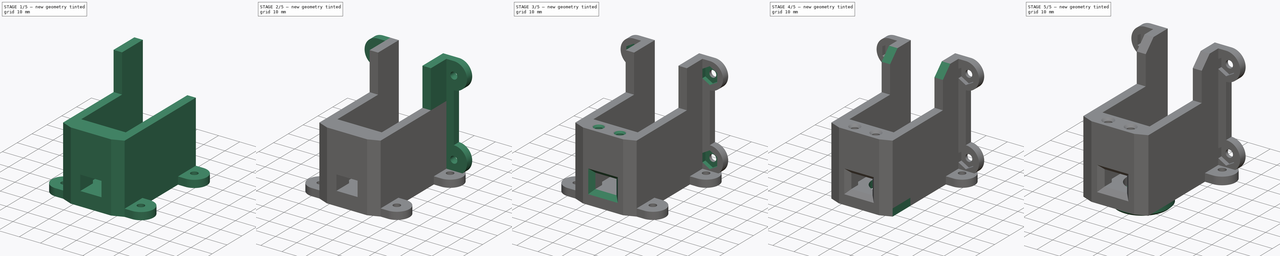
[diagram: build sequence overview — one tinted view per stage of 5, left to right]
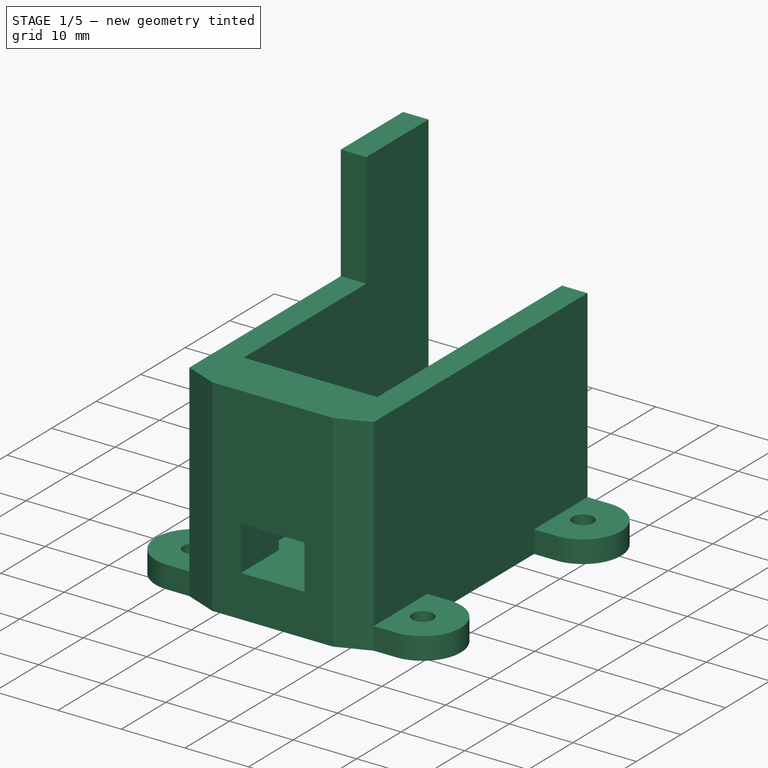
[diagram: stage 1 of 5 — iso view after this stage's code; geometry added in this stage tinted green]
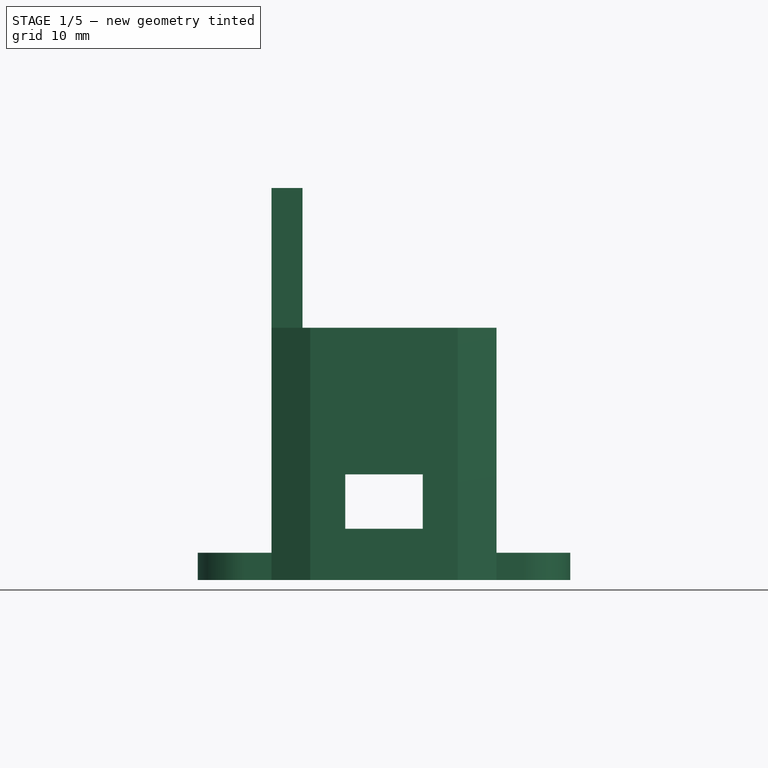
[diagram: stage 1 of 5 — front view after this stage's code; geometry added in this stage tinted green]
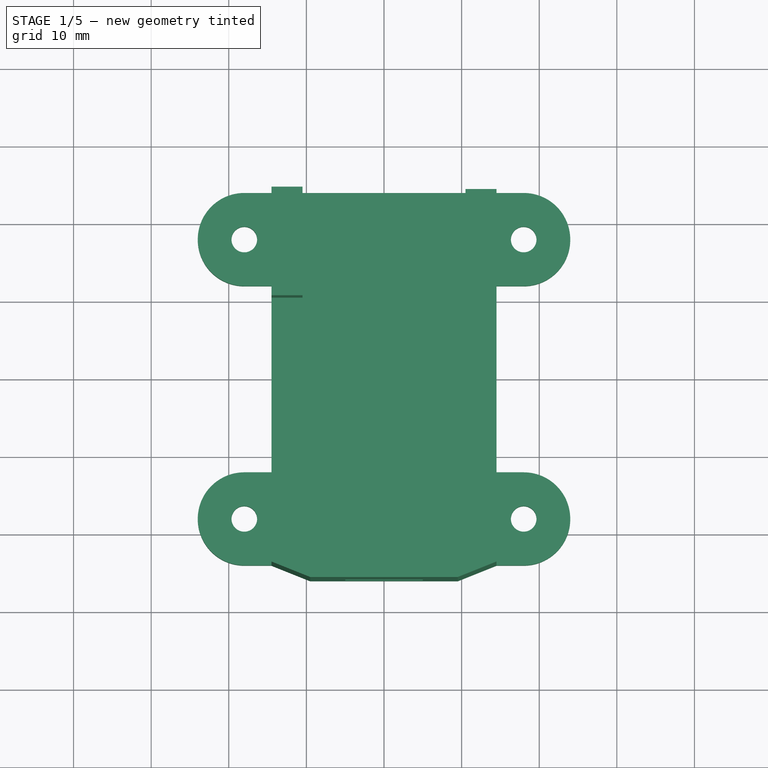
[diagram: stage 1 of 5 — top view after this stage's code; geometry added in this stage tinted green]
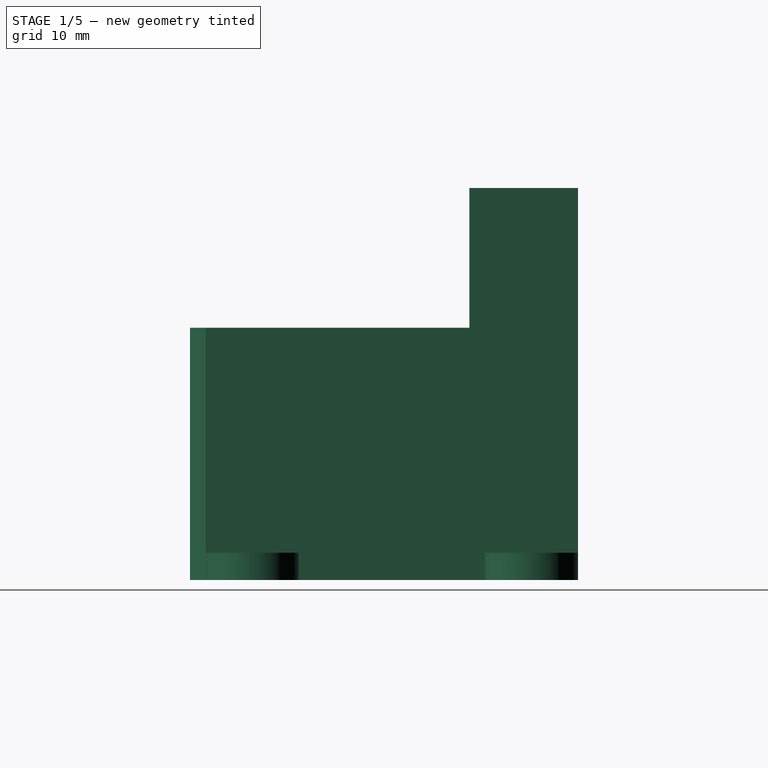
[diagram: stage 1 of 5 — right view after this stage's code; geometry added in this stage tinted green]
FCSTD DOCUMENT  (FreeCAD 0.14R3702 (Git))
Label: SG5010PivotHoleLocked V2
Comment: V2: Screw holes: 1.6 -­> 1.55 mm
License: CC-BY 3.0
LicenseURL: http://creativecommons.org/licenses/by/3.0/
objects: Sketcher::SketchObject×12, PartDesign::Pocket×7, PartDesign::Chamfer×6, PartDesign::Pad×5, PartDesign::Mirrored×3
note: 45 computed .brp shape members not serialized (recipe doc carries the construction recipe); baked Part::Feature solids carry a one-line shape summary decoded from their .brp

FEATURE [Sketcher::SketchObject] Sketch  label="Base"
  sketch-geometry (20):
    g0: LineSegment StartX=14.5 StartY=12 StartZ=0 EndX=18 EndY=12 EndZ=0
    g1: LineSegment StartX=-14.5 StartY=12 StartZ=0 EndX=-18 EndY=12 EndZ=0
    g2: ArcOfCircle CenterX=18 CenterY=18 CenterZ=0 NormalX=0 NormalY=0 NormalZ=1 Radius=6 StartAngle=4.71239 EndAngle=7.85398
    g3: LineSegment StartX=18 StartY=24 StartZ=0 EndX=-18 EndY=24 EndZ=0
    g4: ArcOfCircle CenterX=-18 CenterY=18 CenterZ=0 NormalX=0 NormalY=0 NormalZ=1 Radius=6 StartAngle=1.5708 EndAngle=4.71239
    g5: LineSegment StartX=14.5 StartY=12 StartZ=0 EndX=14.5 EndY=-12 EndZ=0
    g6: LineSegment StartX=-14.5 StartY=12 StartZ=0 EndX=-14.5 EndY=-12 EndZ=0
    g7: LineSegment StartX=-14.5 StartY=-12 StartZ=0 EndX=-18 EndY=-12 EndZ=0
    g8: LineSegment StartX=14.5 StartY=-12 StartZ=0 EndX=18 EndY=-12 EndZ=0
    g9: LineSegment StartX=-14.5 StartY=-24 StartZ=0 EndX=-9.5 EndY=-26 EndZ=0
    g10: LineSegment StartX=-9.5 StartY=-26 StartZ=0 EndX=9.5 EndY=-26 EndZ=0
    g11: LineSegment StartX=9.5 StartY=-26 StartZ=0 EndX=14.5 EndY=-24 EndZ=0
    g12: ArcOfCircle CenterX=-18 CenterY=-18 CenterZ=0 NormalX=0 NormalY=0 NormalZ=1 Radius=6 StartAngle=1.5708 EndAngle=4.71239
    g13: ArcOfCircle CenterX=18 CenterY=-18 CenterZ=0 NormalX=0 NormalY=0 NormalZ=1 Radius=6 StartAngle=4.71239 EndAngle=7.85398
    g14: LineSegment StartX=18 StartY=-24 StartZ=0 EndX=14.5 EndY=-24 EndZ=0
    g15: LineSegment StartX=-18 StartY=-24 StartZ=0 EndX=-14.5 EndY=-24 EndZ=0
    g16: Circle CenterX=18 CenterY=18 CenterZ=0 NormalX=0 NormalY=0 NormalZ=1 Radius=1.65
    g17: Circle CenterX=-18 CenterY=18 CenterZ=0 NormalX=0 NormalY=0 NormalZ=1 Radius=1.65
    g18: Circle CenterX=18 CenterY=-18 CenterZ=0 NormalX=0 NormalY=0 NormalZ=1 Radius=1.65
    g19: Circle CenterX=-18 CenterY=-18 CenterZ=0 NormalX=0 NormalY=0 NormalZ=1 Radius=1.65
  constraints (53):
    c: Symmetric(g0,g1,g-2)
    c: Coincident(g2,g0)
    c: Horizontal(g0)
    c: Symmetric(g0,g1,g-2)
    c: Coincident(g3,g2)
    c: Symmetric(g3,g2,g-2)
    c: Coincident(g4,g3)
    c: Coincident(g4,g1)
    c: Symmetric(g4,g2,g-2)
    c: DistanceX(g4,g3) = 0
    c: DistanceX(g2,g0) = 0
    c: Coincident(g5,g0)
    c: Vertical(g5)
    c: Coincident(g6,g1)
    c: Vertical(g6)
    c: Symmetric(g6,g5,g-2)
    c: Coincident(g7,g6)
    c: Horizontal(g7)
    c: Coincident(g8,g5)
    c: Symmetric(g7,g1,g-1)
    c: Symmetric(g7,g8,g-2)
    c: Symmetric(g12,g13,g-2)
    c: Symmetric(g9,g11,g-2)
    c: Coincident(g9,g10)
    c: Horizontal(g10)
    c: Coincident(g10,g11)
    c: Symmetric(g9,g10,g-2)
    c: Coincident(g13,g8)
    c: Symmetric(g12,g13,g-2)
    c: Coincident(g12,g7)
    c: Coincident(g14,g11)
    c: Coincident(g15,g12)
    c: Coincident(g15,g9)
    c: Horizontal(g15)
    c: Coincident(g14,g13)
    c: DistanceX(g12,g7) = 0
    c: DistanceX(g13,g13) = 0
    c: Equal(g12,g4)
    c: DistanceX(g6,g9) = 0
    c: Distance(g6,g5) = 29
    c: DistanceY(g2,g10) = -50
    c: DistanceX(g9,g9) = 5
    c: Coincident(g16,g2)
    c: Coincident(g17,g4)
    c: Coincident(g18,g13)
    c: Coincident(g19,g12)
    c: Equal(g17,g16)
    c: Equal(g16,g18)
    c: Equal(g18,g19)
    c: Radius(g16) = 1.65
    c: DistanceX(g4,g2) = 36
    c: Distance(g2,g13) = 36
    c: Radius(g4) = 6
FEATURE [PartDesign::Pad] Pad  label="Pad - Base"
  Length = 3.5
  Length2 = 100
  Sketch = -> Sketch
  Type = 0
FEATURE [Sketcher::SketchObject] Sketch001  label="Walls profile"
  ExternalGeometry = -> [Pad]
  Placement = pos=(0,0,3.5) rot=(0,0,1;0rad)
  Support = -> Pad [Face22]
  sketch-geometry (10):
    g0: LineSegment StartX=-14.5 StartY=24 StartZ=0 EndX=-14.5 EndY=-24 EndZ=0
    g1: LineSegment StartX=-14.5 StartY=-24 StartZ=0 EndX=-9.5 EndY=-26 EndZ=0
    g2: LineSegment StartX=-9.5 StartY=-26 StartZ=0 EndX=9.5 EndY=-26 EndZ=0
    g3: LineSegment StartX=9.5 StartY=-26 StartZ=0 EndX=14.5 EndY=-24 EndZ=0
    g4: LineSegment StartX=14.5 StartY=-24 StartZ=0 EndX=14.5 EndY=24 EndZ=0
    g5: LineSegment StartX=14.5 StartY=24 StartZ=0 EndX=10.5 EndY=24 EndZ=0
    g6: LineSegment StartX=10.5 StartY=24 StartZ=0 EndX=10.5 EndY=-17.5 EndZ=0
    g7: LineSegment StartX=10.5 StartY=-17.5 StartZ=0 EndX=-10.5 EndY=-17.5 EndZ=0
    g8: LineSegment StartX=-10.5 StartY=-17.5 StartZ=0 EndX=-10.5 EndY=24 EndZ=0
    g9: LineSegment StartX=-10.5 StartY=24 StartZ=0 EndX=-14.5 EndY=24 EndZ=0
  constraints (27):
    c: PointOnObject(g0,g-5)
    c: Coincident(g0,g-7)
    c: Vertical(g0)
    c: Coincident(g0,g1)
    c: Coincident(g1,g2)
    c: Coincident(g2,g-8)
    c: Horizontal(g2)
    c: Coincident(g2,g3)
    c: Coincident(g3,g-8)
    c: Coincident(g3,g4)
    c: PointOnObject(g4,g-5)
    c: Vertical(g4)
    c: Coincident(g4,g5)
    c: Horizontal(g5)
    c: Coincident(g5,g6)
    c: Vertical(g6)
    c: Coincident(g6,g7)
    c: Horizontal(g7)
    c: Coincident(g7,g8)
    c: PointOnObject(g8,g-5)
    c: Vertical(g8)
    c: Coincident(g8,g9)
    c: Coincident(g9,g0)
    c: Symmetric(g7,g6,g-2)
    c: Coincident(g1,g-7)
    c: Distance(g7,g6) = 21
    c: Distance(g6) = 41.5
FEATURE [PartDesign::Pad] Pad001  label="Pad - Walls"
  Length = 29
  Length2 = 100
  Sketch = -> Sketch001
  Type = 0
FEATURE [Sketcher::SketchObject] Sketch002  label="Cable hole"
  ExternalGeometry = -> [Pad001]
  Placement = pos=(0,-26,0) rot=(1,0,0;1.5708rad)
  Support = -> Pad001 [Face34]
  sketch-geometry (7):
    g0: LineSegment StartX=-5 StartY=13.6 StartZ=0 EndX=5 EndY=13.6 EndZ=0
    g1: LineSegment StartX=5 StartY=13.6 StartZ=0 EndX=5 EndY=6.6 EndZ=0
    g2: LineSegment StartX=5 StartY=6.6 StartZ=0 EndX=-5 EndY=6.6 EndZ=0
    g3: LineSegment StartX=-5 StartY=6.6 StartZ=0 EndX=-5 EndY=13.6 EndZ=0
    g4: LineSegment [constr] StartX=-5 StartY=13.6 StartZ=0 EndX=5 EndY=6.6 EndZ=0
    g5: LineSegment [constr] StartX=5 StartY=13.6 StartZ=0 EndX=-5 EndY=6.6 EndZ=0
    g6: GeomPoint [constr] X=0 Y=10.1 Z=0
  constraints (18):
    c: Coincident(g0,g1)
    c: Coincident(g1,g2)
    c: Coincident(g2,g3)
    c: Coincident(g3,g0)
    c: Horizontal(g0)
    c: Horizontal(g2)
    c: Vertical(g1)
    c: Vertical(g3)
    c: Symmetric(g0,g0,g-2)
    c: Coincident(g4,g0)
    c: Coincident(g4,g1)
    c: Coincident(g5,g0)
    c: Coincident(g5,g2)
    c: PointOnObject(g6,g5)
    c: PointOnObject(g6,g4)
    c: DistanceY(g6,g-3) = 22.4
    c: Distance(g3) = 7
    c: Distance(g0) = 10
FEATURE [PartDesign::Pocket] Pocket  label="Pocket - Cable hole"
  Length = 5
  Sketch = -> Sketch002
  Type = 1
FEATURE [Sketcher::SketchObject] Sketch003  label="Back tower"
  ExternalGeometry = -> [Pocket]
  Placement = pos=(0,0,32.5) rot=(0,0,1;0rad)
  Support = -> Pocket [Face26]
  sketch-geometry (4):
    g0: LineSegment StartX=-14.5 StartY=24 StartZ=0 EndX=-10.5 EndY=24 EndZ=0
    g1: LineSegment StartX=-10.5 StartY=24 StartZ=0 EndX=-10.5 EndY=10 EndZ=0
    g2: LineSegment StartX=-10.5 StartY=10 StartZ=0 EndX=-14.5 EndY=10 EndZ=0
    g3: LineSegment StartX=-14.5 StartY=10 StartZ=0 EndX=-14.5 EndY=24 EndZ=0
  constraints (11):
    c: Coincident(g0,g1)
    c: Coincident(g1,g2)
    c: Coincident(g2,g3)
    c: Coincident(g3,g0)
    c: Horizontal(g0)
    c: Horizontal(g2)
    c: Vertical(g1)
    c: Vertical(g3)
    c: Distance(g3) = 14
    c: Coincident(g0,g-3)
    c: Coincident(g0,g-3)
FEATURE [PartDesign::Pad] Pad002  label="Pad - Back tower"
  Length = 18
  Length2 = 100
  Sketch = -> Sketch003
  Type = 0
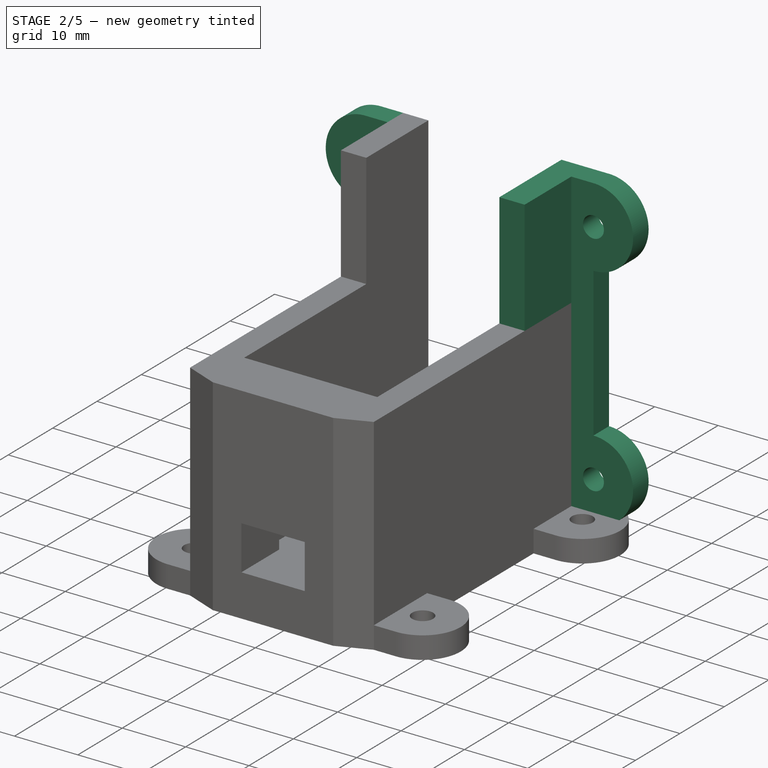
[diagram: stage 2 of 5 — iso view after this stage's code; geometry added in this stage tinted green]
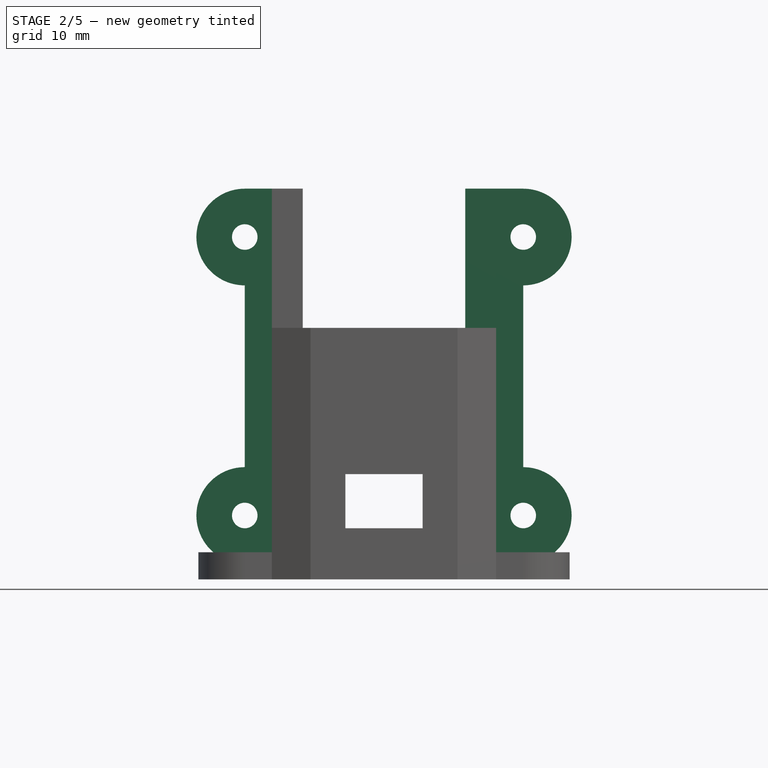
[diagram: stage 2 of 5 — front view after this stage's code; geometry added in this stage tinted green]
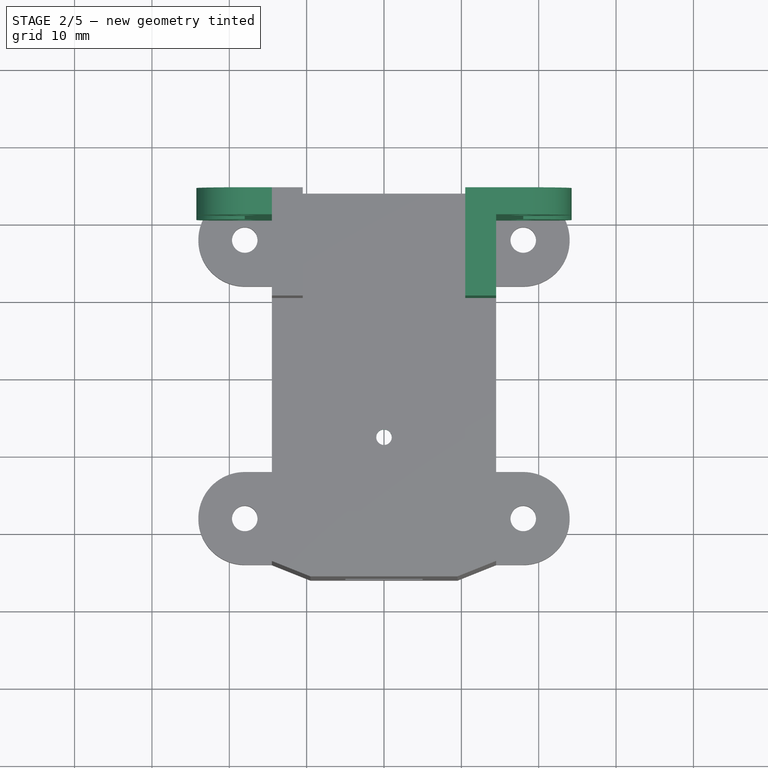
[diagram: stage 2 of 5 — top view after this stage's code; geometry added in this stage tinted green]
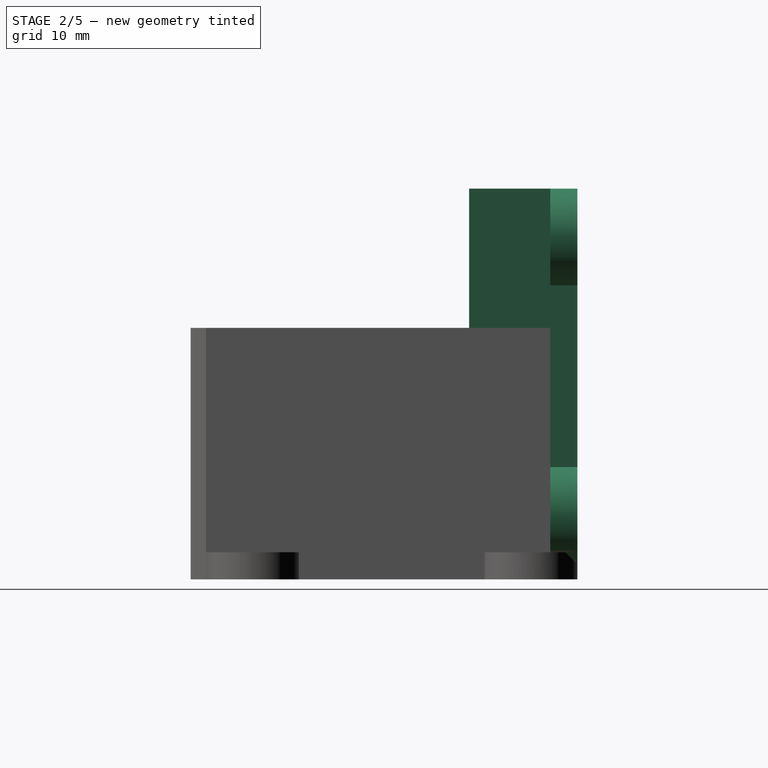
[diagram: stage 2 of 5 — right view after this stage's code; geometry added in this stage tinted green]
FEATURE [PartDesign::Mirrored] Mirrored
  MirrorPlane = -> Sketch003 [V_Axis]
  Originals = -> [Pad002]
FEATURE [Sketcher::SketchObject] Sketch004  label="Back ears"
  ExternalGeometry = -> [Mirrored]
  Placement = pos=(0,24,0) rot=(0,0.707107,0.707107;3.14159rad)
  Support = -> Mirrored [Face31]
  sketch-geometry (16):
    g0: ArcOfCircle CenterX=18 CenterY=44.25 CenterZ=0 NormalX=0 NormalY=0 NormalZ=1 Radius=6.25 StartAngle=4.71239 EndAngle=7.85398
    g1: ArcOfCircle CenterX=18 CenterY=8.25 CenterZ=0 NormalX=0 NormalY=0 NormalZ=1 Radius=6.25 StartAngle=4.71239 EndAngle=7.85398
    g2: ArcOfCircle CenterX=-18 CenterY=44.25 CenterZ=0 NormalX=0 NormalY=0 NormalZ=1 Radius=6.25 StartAngle=1.5708 EndAngle=4.71239
    g3: ArcOfCircle CenterX=-18 CenterY=8.25 CenterZ=0 NormalX=0 NormalY=0 NormalZ=1 Radius=6.25 StartAngle=1.5708 EndAngle=4.71239
    g4: LineSegment StartX=18 StartY=50.5 StartZ=0 EndX=10.5 EndY=50.5 EndZ=0
    g5: LineSegment StartX=10.5 StartY=50.5 StartZ=0 EndX=10.5 EndY=2 EndZ=0
    g6: LineSegment StartX=10.5 StartY=2 StartZ=0 EndX=18 EndY=2 EndZ=0
    g7: LineSegment StartX=18 StartY=38 StartZ=0 EndX=18 EndY=14.5 EndZ=0
    g8: LineSegment StartX=-18 StartY=50.5 StartZ=0 EndX=-10.5 EndY=50.5 EndZ=0
    g9: LineSegment StartX=-10.5 StartY=50.5 StartZ=0 EndX=-10.5 EndY=2 EndZ=0
    g10: LineSegment StartX=-10.5 StartY=2 StartZ=0 EndX=-18 EndY=2 EndZ=0
    g11: LineSegment StartX=-18 StartY=38 StartZ=0 EndX=-18 EndY=14.5 EndZ=0
    g12: Circle CenterX=-18 CenterY=44.25 CenterZ=0 NormalX=0 NormalY=0 NormalZ=1 Radius=1.65
    g13: Circle CenterX=18 CenterY=44.25 CenterZ=0 NormalX=0 NormalY=0 NormalZ=1 Radius=1.65
    g14: Circle CenterX=18 CenterY=8.25 CenterZ=0 NormalX=0 NormalY=0 NormalZ=1 Radius=1.65
    g15: Circle CenterX=-18 CenterY=8.25 CenterZ=0 NormalX=0 NormalY=0 NormalZ=1 Radius=1.65
  constraints (42):
    c: Symmetric(g2,g0,g-2)
    c: Symmetric(g3,g1,g-2)
    c: Equal(g0,g1)
    c: Symmetric(g0,g2,g-2)
    c: Symmetric(g2,g0,g-2)
    c: Symmetric(g3,g1,g-2)
    c: Symmetric(g3,g1,g-2)
    c: DistanceX(g2,g2) = 0
    c: DistanceX(g0,g0) = 0
    c: DistanceX(g3,g3) = 0
    c: DistanceX(g1,g1) = 0
    c: DistanceX(g0,g1) = 0
    c: Distance(g0,g2) = 36
    c: Distance(g0,g1) = 36
    c: Radius(g1) = 6.25
    c: DistanceY(g-3,g0) = 0
    c: Tangent(g0,g4)
    c: Coincident(g4,g5)
    c: Vertical(g5)
    c: Coincident(g5,g6)
    c: Coincident(g6,g1)
    c: Horizontal(g6)
    c: Coincident(g7,g0)
    c: Coincident(g7,g1)
    c: Coincident(g4,g-3)
    c: Vertical(g9)
    c: Coincident(g9,g10)
    c: Coincident(g10,g3)
    c: Horizontal(g10)
    c: Coincident(g8,g-5)
    c: Coincident(g9,g8)
    c: Coincident(g2,g8)
    c: Coincident(g11,g2)
    c: Coincident(g11,g3)
    c: Coincident(g12,g2)
    c: Coincident(g13,g0)
    c: Coincident(g14,g1)
    c: Coincident(g15,g3)
    c: Equal(g12,g13)
    c: Equal(g13,g14)
    c: Equal(g14,g15)
    c: Radius(g13) = 1.65
FEATURE [PartDesign::Pad] Pad003  label="Pad - Back ears"
  Length = 3.5
  Length2 = 100
  Reversed = true
  Sketch = -> Sketch004
  Type = 0
FEATURE [Sketcher::SketchObject] Sketch005  label="Pivot hole"
  ExternalGeometry = -> [Pad003]
  Placement = pos=(0,0,0) rot=(1,0,0;3.14159rad)
  Support = -> Pad003 [Face4]
  sketch-geometry (2):
    g0: GeomPoint [constr] X=0 Y=7.5 Z=0
    g1: Circle CenterX=0 CenterY=7.5 CenterZ=0 NormalX=0 NormalY=0 NormalZ=1 Radius=1
  constraints (4):
    c: PointOnObject(g0,g-2)
    c: Distance(g0,g-4) = 10
    c: Coincident(g1,g0)
    c: Radius(g1) = 1
FEATURE [PartDesign::Pocket] Pocket001
  Length = 5
  Sketch = -> Sketch005
  Type = 0
FEATURE [PartDesign::Chamfer] Chamfer
  Base = -> Pocket001 [Edge29]
  Size = 2
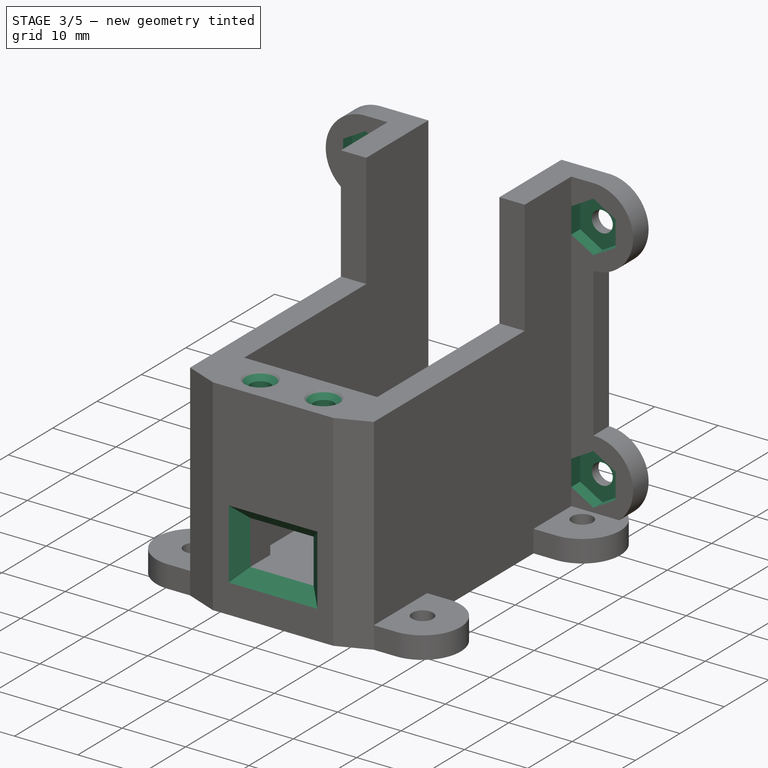
[diagram: stage 3 of 5 — iso view after this stage's code; geometry added in this stage tinted green]
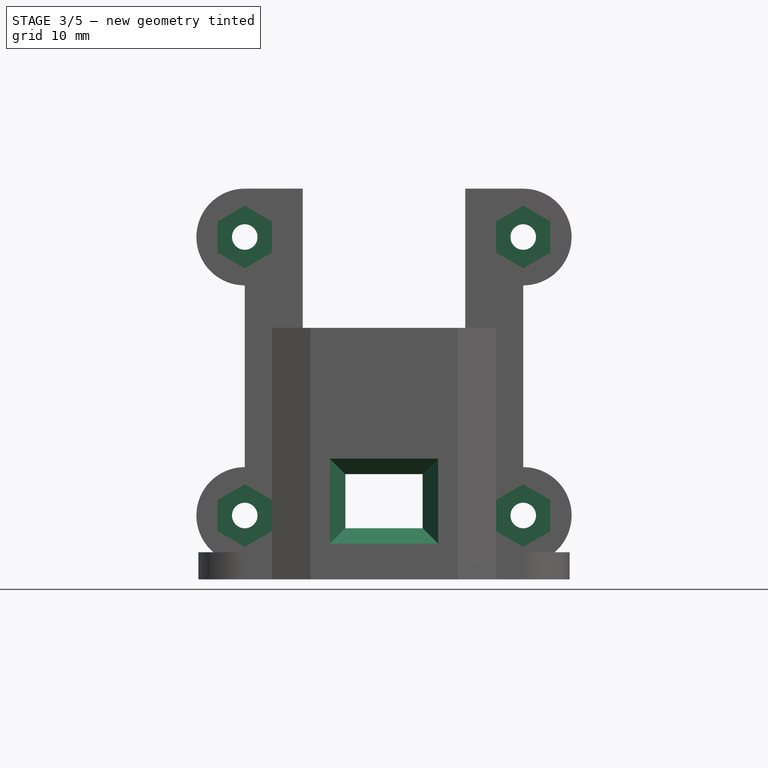
[diagram: stage 3 of 5 — front view after this stage's code; geometry added in this stage tinted green]
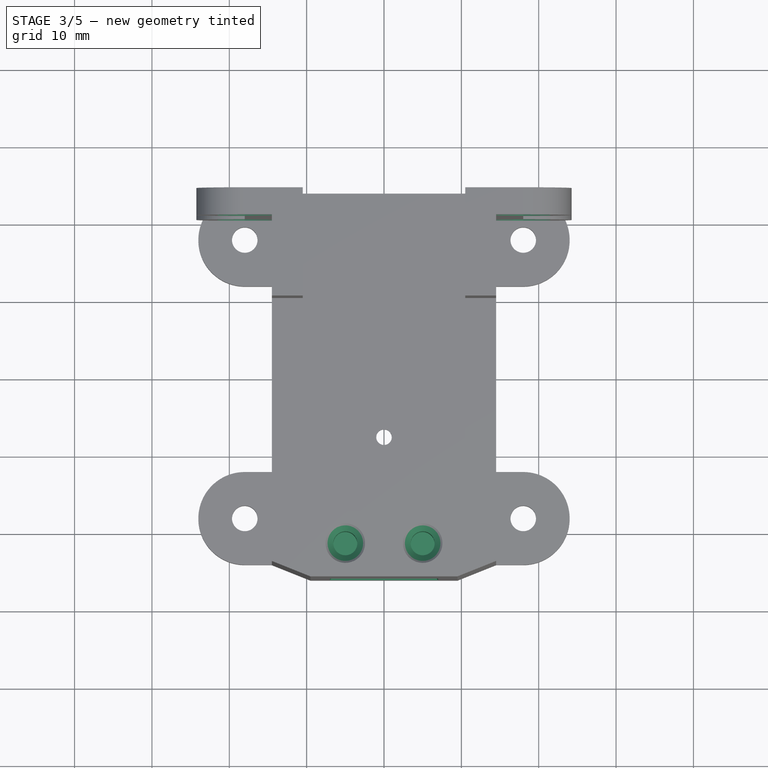
[diagram: stage 3 of 5 — top view after this stage's code; geometry added in this stage tinted green]
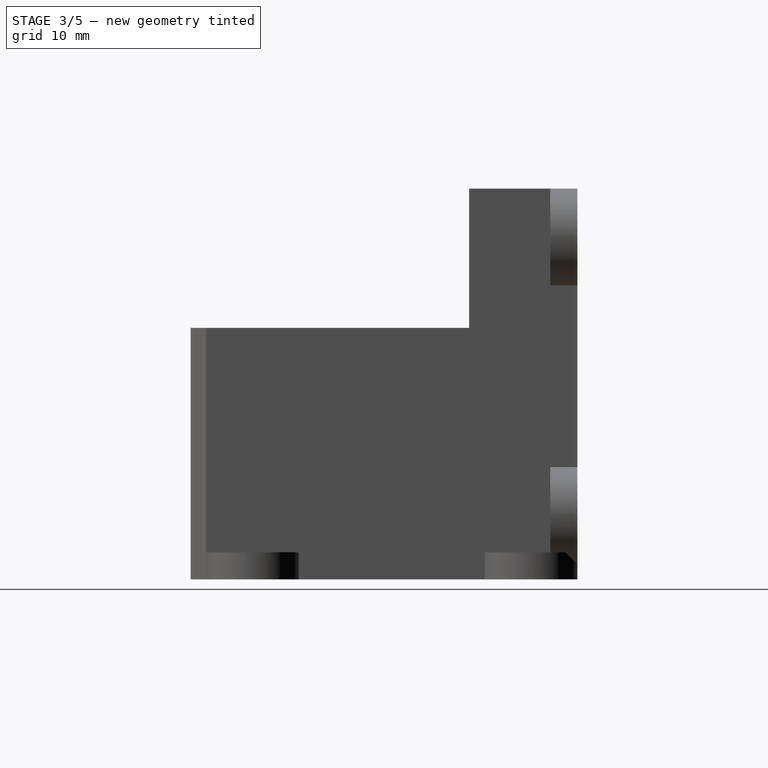
[diagram: stage 3 of 5 — right view after this stage's code; geometry added in this stage tinted green]
FEATURE [Sketcher::SketchObject] Sketch006  label="Back ears hexagons"
  ExternalGeometry = -> [Chamfer]
  Placement = pos=(0,20.5,0) rot=(1,0,0;1.5708rad)
  Support = -> Chamfer [Face51]
  sketch-geometry (18):
    g0: LineSegment StartX=-21.5 StartY=42.2293 StartZ=0 EndX=-18 EndY=40.2085 EndZ=0
    g1: LineSegment StartX=-18 StartY=40.2085 StartZ=0 EndX=-14.5 EndY=42.2293 EndZ=0
    g2: LineSegment StartX=-14.5 StartY=42.2293 StartZ=0 EndX=-14.5 EndY=46.2707 EndZ=0
    g3: LineSegment StartX=-14.5 StartY=46.2707 StartZ=0 EndX=-18 EndY=48.2915 EndZ=0
    g4: LineSegment StartX=-18 StartY=48.2915 StartZ=0 EndX=-21.5 EndY=46.2707 EndZ=0
    g5: LineSegment StartX=-21.5 StartY=46.2707 StartZ=0 EndX=-21.5 EndY=42.2293 EndZ=0
    g6: LineSegment [constr] StartX=-21.5 StartY=46.2707 StartZ=0 EndX=-14.5 EndY=42.2293 EndZ=0
    g7: LineSegment [constr] StartX=-14.5 StartY=46.2707 StartZ=0 EndX=-21.5 EndY=42.2293 EndZ=0
    g8: GeomPoint [constr] X=-18 Y=44.25 Z=0
    g9: LineSegment StartX=-18 StartY=12.2915 StartZ=0 EndX=-21.5 EndY=10.2707 EndZ=0
    g10: LineSegment StartX=-21.5 StartY=10.2707 StartZ=0 EndX=-21.5 EndY=6.22927 EndZ=0
    g11: LineSegment StartX=-21.5 StartY=6.22927 StartZ=0 EndX=-18 EndY=4.20855 EndZ=0
    g12: LineSegment StartX=-18 StartY=4.20855 StartZ=0 EndX=-14.5 EndY=6.22927 EndZ=0
    g13: LineSegment StartX=-14.5 StartY=6.22927 StartZ=0 EndX=-14.5 EndY=10.2707 EndZ=0
    g14: LineSegment StartX=-14.5 StartY=10.2707 StartZ=0 EndX=-18 EndY=12.2915 EndZ=0
    g15: LineSegment [constr] StartX=-21.5 StartY=10.2707 StartZ=0 EndX=-14.5 EndY=6.22927 EndZ=0
    g16: LineSegment [constr] StartX=-14.5 StartY=10.2707 StartZ=0 EndX=-21.5 EndY=6.22927 EndZ=0
    g17: GeomPoint [constr] X=-18 Y=8.25 Z=0
  constraints (46):
    c: Coincident(g0,g1)
    c: Coincident(g1,g2)
    c: Vertical(g2)
    c: Coincident(g2,g3)
    c: Coincident(g3,g4)
    c: Coincident(g4,g5)
    c: Coincident(g5,g0)
    c: Vertical(g5)
    c: Equal(g5,g4)
    c: Equal(g4,g3)
    c: Equal(g3,g2)
    c: Equal(g2,g1)
    c: Equal(g1,g0)
    c: Angle(g5,g4) = 2.0944
    c: Angle(g4,g3) = 2.0944
    c: Coincident(g6,g4)
    c: Coincident(g6,g1)
    c: Coincident(g7,g2)
    c: Coincident(g7,g0)
    c: PointOnObject(g8,g7)
    c: PointOnObject(g8,g6)
    c: Distance(g4,g2) = 7
    c: Coincident(g8,g-3)
    c: Coincident(g9,g10)
    c: Vertical(g10)
    c: Coincident(g10,g11)
    c: Coincident(g11,g12)
    c: Coincident(g12,g13)
    c: Vertical(g13)
    c: Coincident(g13,g14)
    c: Coincident(g14,g9)
    c: Equal(g9,g14)
    c: Equal(g14,g13)
    c: Equal(g13,g12)
    c: Equal(g12,g11)
    c: Equal(g11,g10)
    c: Angle(g10,g9) = 2.0944
    c: Angle(g9,g14) = 2.0944
    c: Coincident(g15,g9)
    c: Coincident(g15,g12)
    c: Coincident(g16,g13)
    c: Coincident(g16,g10)
    c: PointOnObject(g17,g16)
    c: PointOnObject(g17,g15)
    c: Distance(g9,g13) = 7
    c: Coincident(g17,g-4)
FEATURE [PartDesign::Pocket] Pocket002  label="Pocket - Back ears hexagons"
  Length = 2
  Sketch = -> Sketch006
  Type = 0
FEATURE [PartDesign::Mirrored] Mirrored001
  MirrorPlane = -> Sketch006 [V_Axis]
  Originals = -> [Pocket002]
FEATURE [Sketcher::SketchObject] Sketch007  label="Screw holes"
  ExternalGeometry = -> [Mirrored001]
  Placement = pos=(0,0,32.5) rot=(0,0,1;0rad)
  Support = -> Mirrored001 [Face39]
  sketch-geometry (2):
    g0: Circle CenterX=5 CenterY=-21.7 CenterZ=0 NormalX=0 NormalY=0 NormalZ=1 Radius=1.55
    g1: Circle CenterX=-5 CenterY=-21.7 CenterZ=0 NormalX=0 NormalY=0 NormalZ=1 Radius=1.55
  constraints (5):
    c: Symmetric(g1,g0,g-2)
    c: Equal(g0,g1)
    c: Distance(g1,g0) = 10
    c: Radius(g0) = 1.55
    c: Distance(g1,g-3) = 4.2
FEATURE [PartDesign::Pocket] Pocket003  label="Pocket - Screw holes"
  Length = 7
  Sketch = -> Sketch007
  Type = 0
FEATURE [PartDesign::Chamfer] Chamfer001
  Base = -> Pocket003 [Edge138,Edge139]
  Size = 1
FEATURE [PartDesign::Chamfer] Chamfer002
  Base = -> Chamfer001 [Edge37,Edge36,Edge35,Edge34,Edge41,Edge42,Edge43,Edge40]
  Size = 2
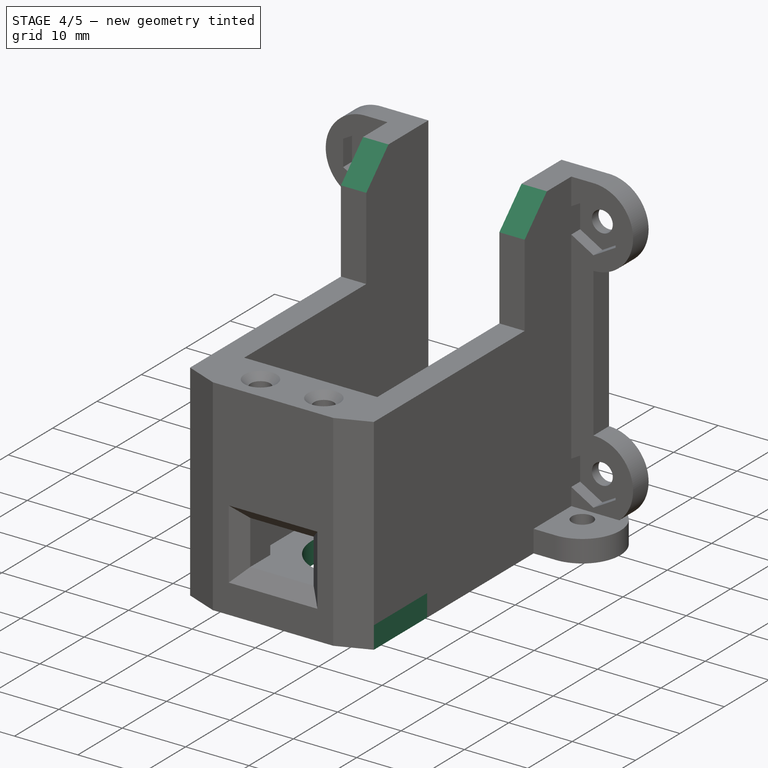
[diagram: stage 4 of 5 — iso view after this stage's code; geometry added in this stage tinted green]
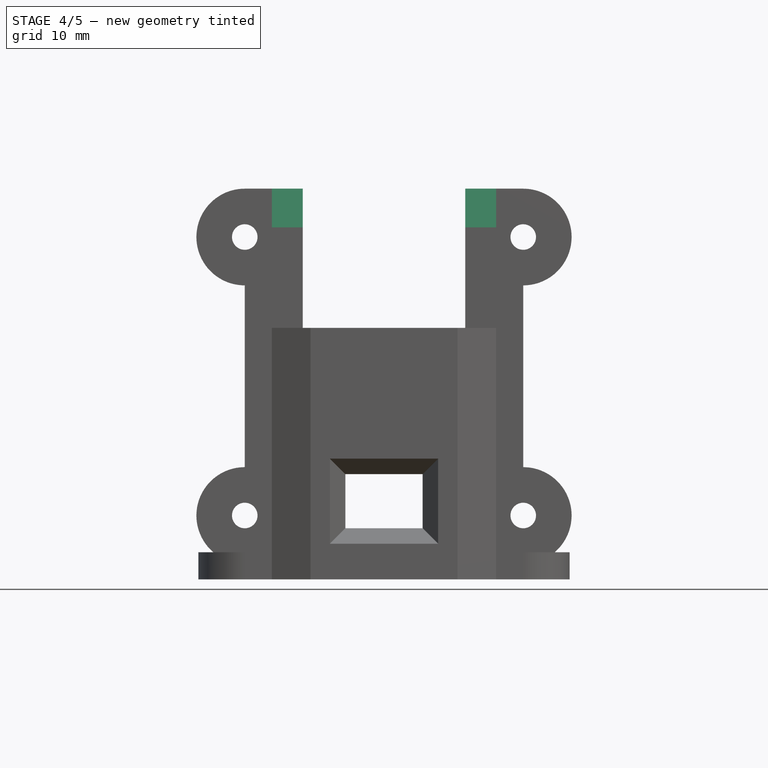
[diagram: stage 4 of 5 — front view after this stage's code; geometry added in this stage tinted green]
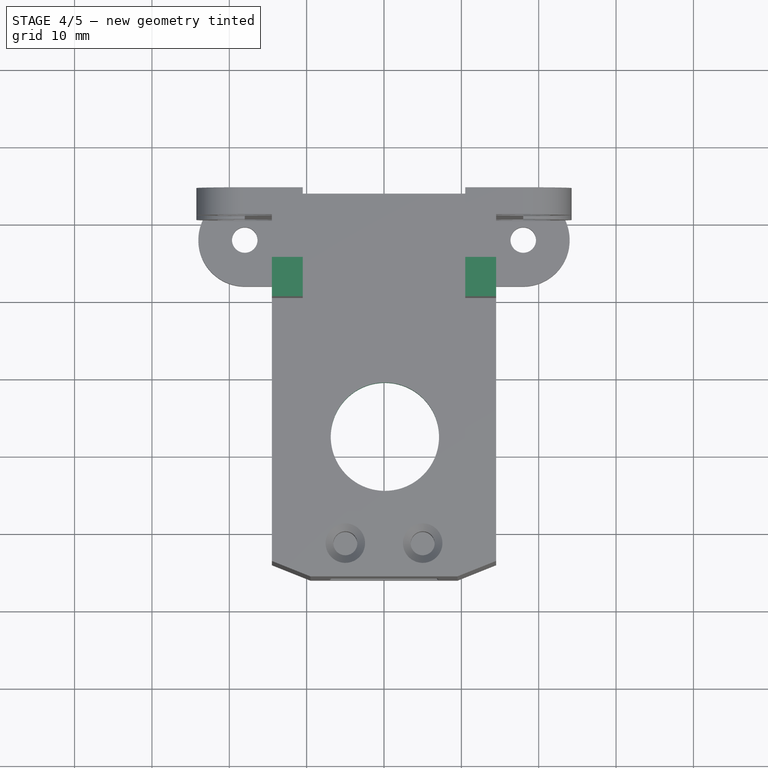
[diagram: stage 4 of 5 — top view after this stage's code; geometry added in this stage tinted green]
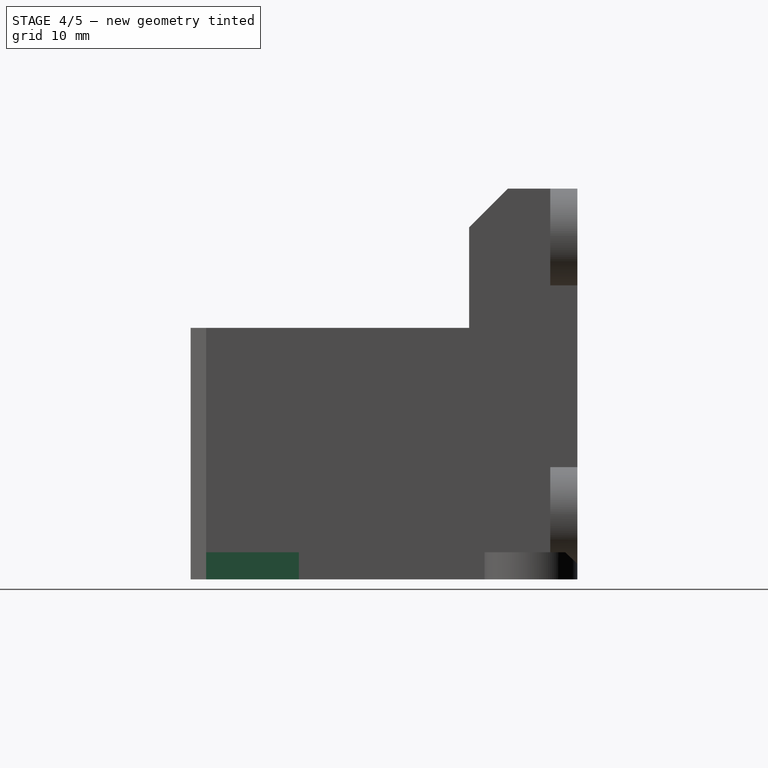
[diagram: stage 4 of 5 — right view after this stage's code; geometry added in this stage tinted green]
FEATURE [PartDesign::Chamfer] Chamfer003
  Base = -> Chamfer002 [Edge75,Edge98]
  Size = 5
FEATURE [Sketcher::SketchObject] Sketch008  label="Foot cut"
  ExternalGeometry = -> [Chamfer003]
  Placement = pos=(0,0,3.5) rot=(0,0,1;0rad)
  Support = -> Chamfer003 [Face43]
  sketch-geometry (4):
    g0: LineSegment StartX=14.5 StartY=-9.0325 StartZ=0 EndX=27.2502 EndY=-9.0325 EndZ=0
    g1: LineSegment StartX=27.2502 StartY=-9.0325 StartZ=0 EndX=27.2502 EndY=-26.5839 EndZ=0
    g2: LineSegment StartX=27.2502 StartY=-26.5839 StartZ=0 EndX=14.5 EndY=-26.5839 EndZ=0
    g3: LineSegment StartX=14.5 StartY=-26.5839 StartZ=0 EndX=14.5 EndY=-9.0325 EndZ=0
  constraints (12):
    c: Coincident(g0,g1)
    c: Coincident(g1,g2)
    c: Coincident(g2,g3)
    c: Coincident(g3,g0)
    c: Horizontal(g0)
    c: Horizontal(g2)
    c: Vertical(g1)
    c: Vertical(g3)
    c: PointOnObject(g-3,g3)
    c: Distance(g3) = 17.5514
    c: Distance(g0) = 12.7502
    c: DistanceY(g-1,g0) = -9.0325
FEATURE [PartDesign::Pocket] Pocket004  label="Pocket - Foot cut"
  Length = 5
  Sketch = -> Sketch008
  Type = 1
FEATURE [PartDesign::Mirrored] Mirrored002
  MirrorPlane = -> Sketch008 [V_Axis]
  Originals = -> [Pocket004]
FEATURE [Sketcher::SketchObject] Sketch009  label="Disk cavity"
  ExternalGeometry = -> [Mirrored002]
  Placement = pos=(0,0,0) rot=(1,0,0;3.14159rad)
  Support = -> Mirrored002 [Face76]
  sketch-geometry (1):
    g0: Circle CenterX=0.115444 CenterY=7.43355 CenterZ=0 NormalX=0 NormalY=0 NormalZ=1 Radius=7
  constraints (1):
    c: Radius(g0) = 7
FEATURE [PartDesign::Pocket] Pocket005  label="Pocket - Disk cavity"
  Length = 0
  Sketch = -> Sketch009
  Type = 3
  UpToFace = -> Mirrored002 [Face21]
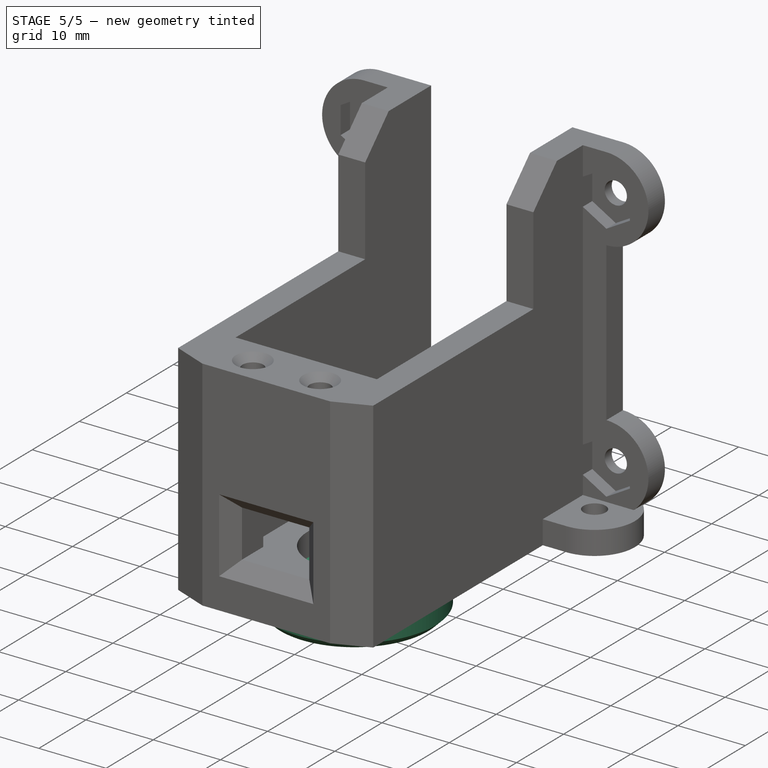
[diagram: stage 5 of 5 — iso view after this stage's code; geometry added in this stage tinted green]
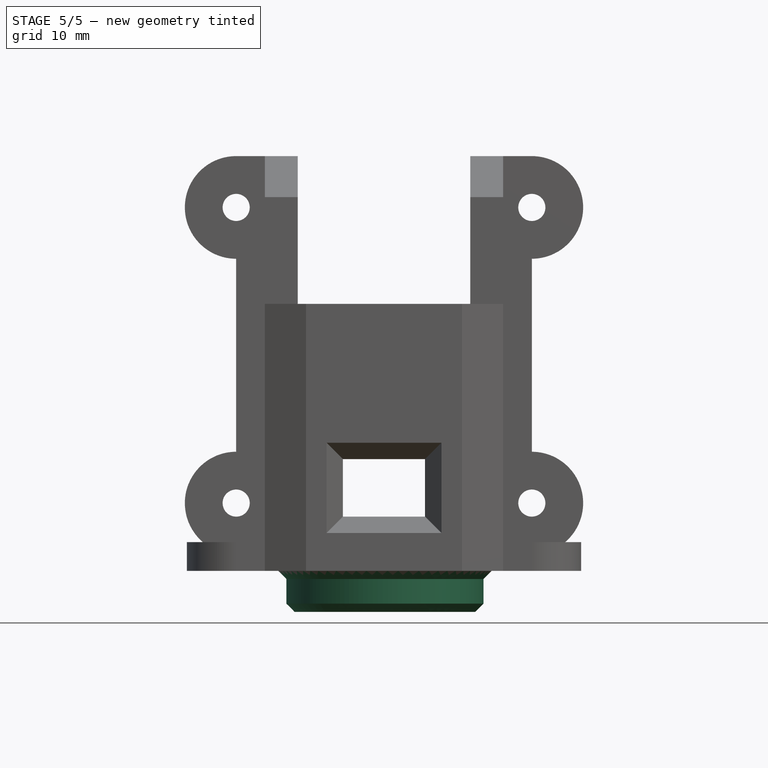
[diagram: stage 5 of 5 — front view after this stage's code; geometry added in this stage tinted green]
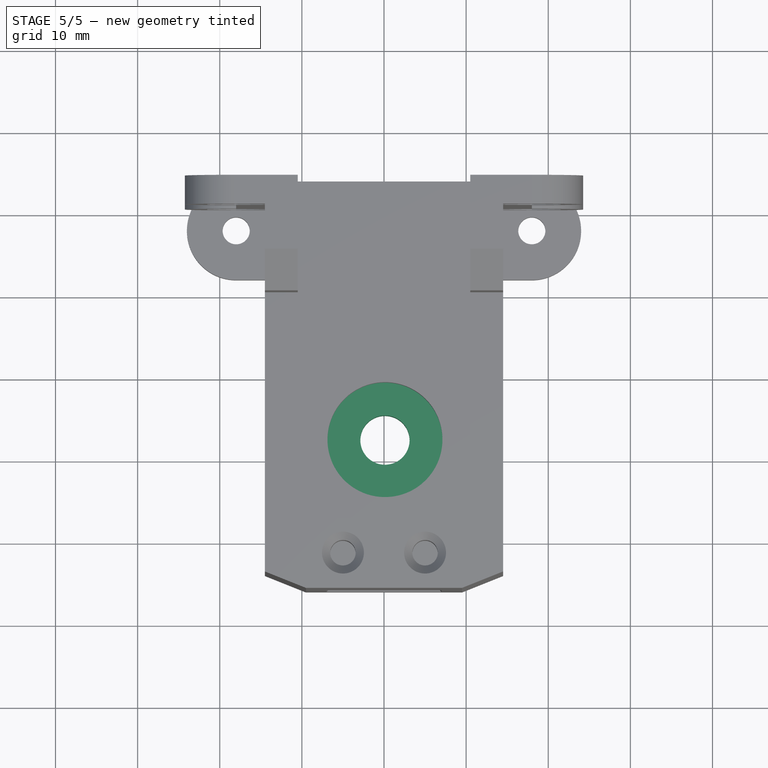
[diagram: stage 5 of 5 — top view after this stage's code; geometry added in this stage tinted green]
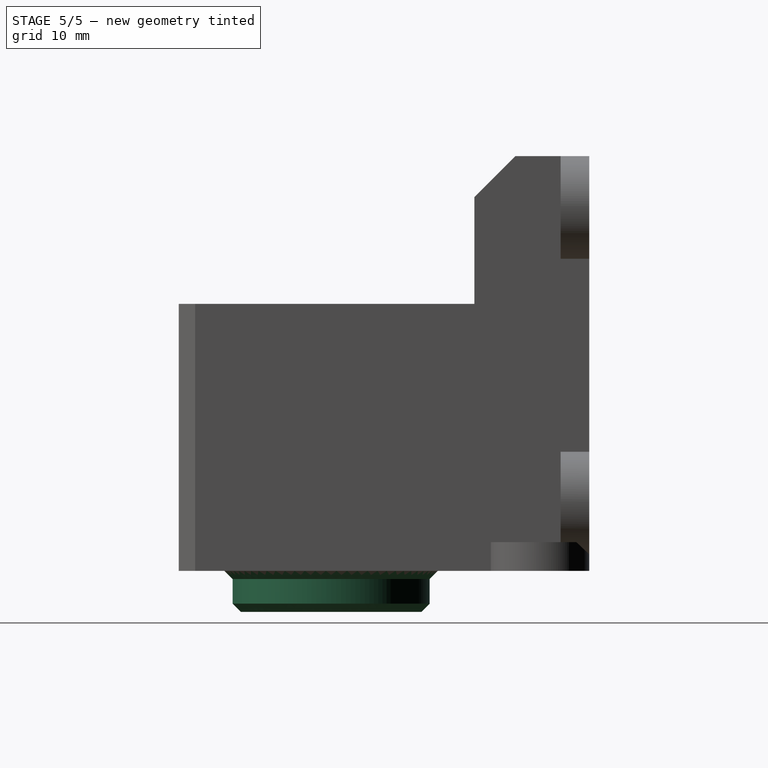
[diagram: stage 5 of 5 — right view after this stage's code; geometry added in this stage tinted green]
FEATURE [Sketcher::SketchObject] Sketch010  label="Cavity cover"
  ExternalGeometry = -> [Pocket005]
  Placement = pos=(0,0,0) rot=(1,0,0;3.14159rad)
  Support = -> Pocket005 [Face76]
  sketch-geometry (2):
    g0: Circle CenterX=0.115444 CenterY=7.43355 CenterZ=0 NormalX=0 NormalY=0 NormalZ=1 Radius=12
    g1: LineSegment StartX=7.11544 StartY=7.43355 StartZ=0 EndX=12.1154 EndY=7.43355 EndZ=0
  constraints (6):
    c: Coincident(g0,g-3)
    c: PointOnObject(g1,g-3)
    c: PointOnObject(g1,g0)
    c: Perpendicular(g1,g-3)
    c: Angle(g1) = 0
    c: Distance(g1) = 5
FEATURE [PartDesign::Pad] Pad004  label="Pas - Cavity cover"
  Length = 5
  Length2 = 100
  Sketch = -> Sketch010
  Type = 0
FEATURE [Sketcher::SketchObject] Sketch011  label="Cavity bore"
  ExternalGeometry = -> [Pad004]
  Placement = pos=(0,0,-5) rot=(1,0,0;3.14159rad)
  Support = -> Pad004 [Face1]
  sketch-geometry (1):
    g0: Circle CenterX=0.115444 CenterY=7.43355 CenterZ=0 NormalX=0 NormalY=0 NormalZ=1 Radius=3
  constraints (2):
    c: Coincident(g0,g-3)
    c: Radius(g0) = 3
FEATURE [PartDesign::Pocket] Pocket006  label="Pocket - Cavity bore"
  Length = 5
  Sketch = -> Sketch011
  Type = 0
FEATURE [PartDesign::Chamfer] Chamfer004
  Base = -> Pocket006 [Edge3]
  Size = 1
FEATURE [PartDesign::Chamfer] Chamfer005
  Base = -> Chamfer004 [Edge3]
  Size = 1
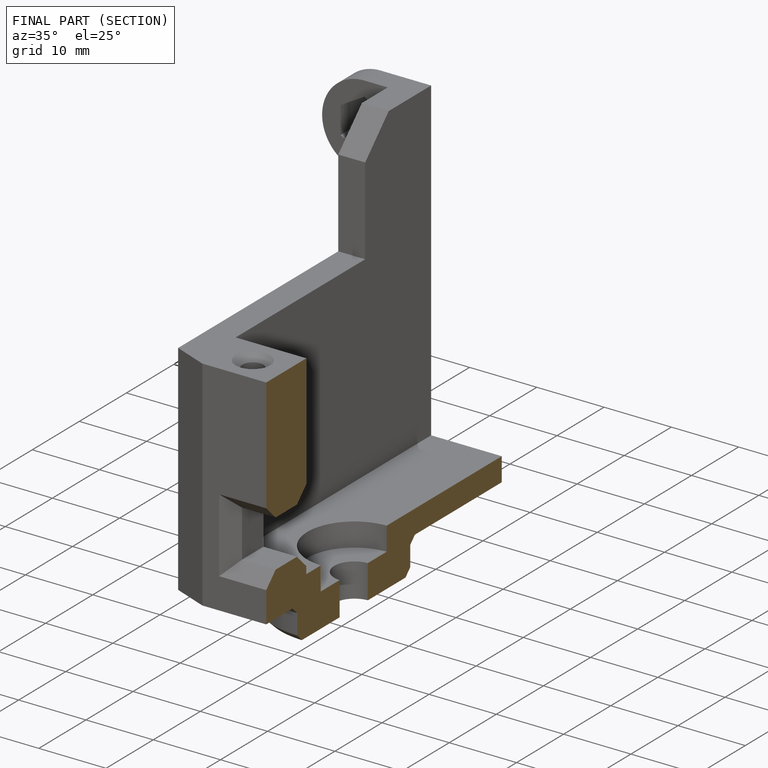
[diagram: finished part — half-section view (interior)]
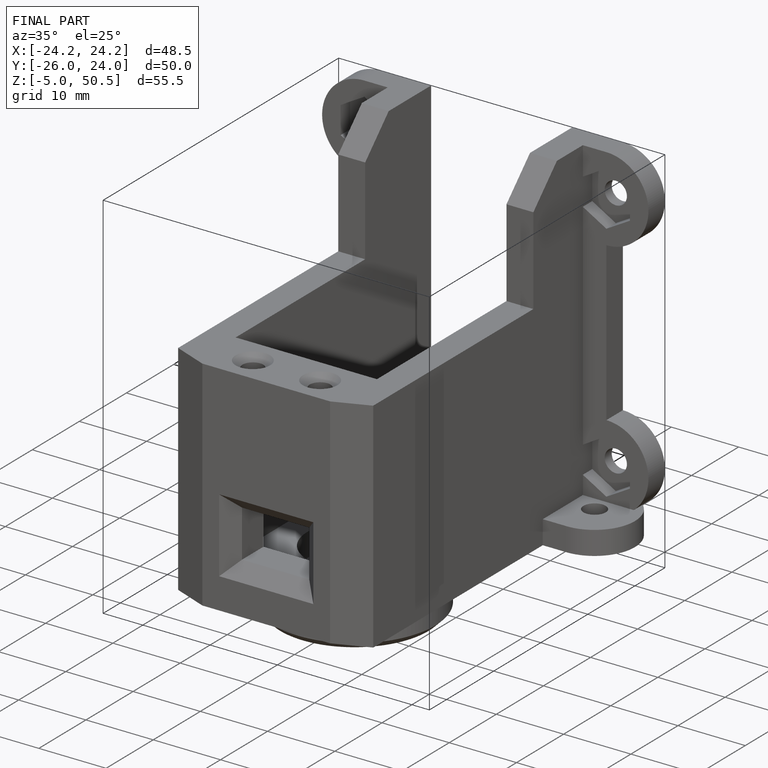
[diagram: finished part — iso view with bounding-box wireframe]
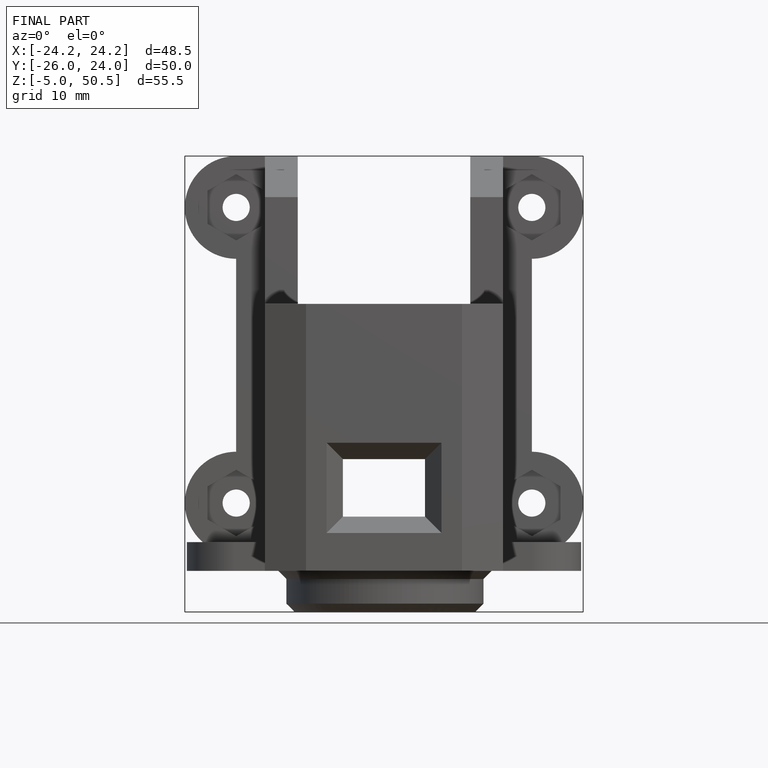
[diagram: finished part — front view with bounding-box wireframe]
